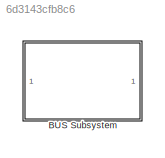
MODEL slx_6d3143cfb8c6
KIND library
CONFIG AbsTol = auto
CONFIG EnableMultiTasking = off
CONFIG FixedStep = auto
CONFIG MaxStep = auto
CONFIG MinStep = auto
CONFIG RelTol = 1e-3
CONFIG SampleTimeConstraint = Unconstrained
CONFIG Solver = VariableStepAuto
CONFIG SolverName = VariableStepAuto
CONFIG StartTime = 0.0
CONFIG StopTime = 10.0
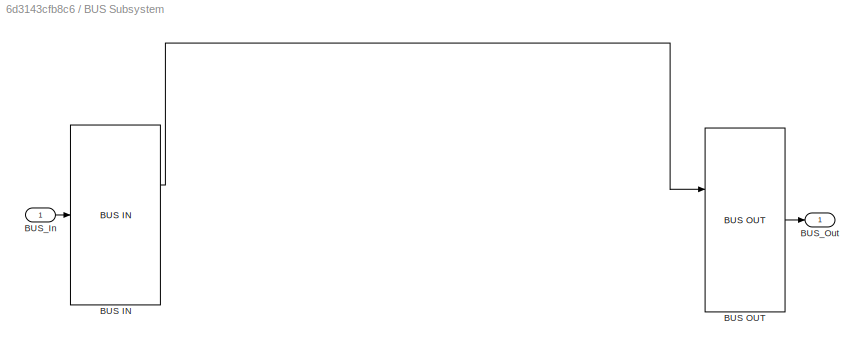
BLOCK [SubSystem] BUS Subsystem
  OpenFcn = set_param(gcb(),'LinkStatus','none')\nopen_system(gcb(),'force')
  Ports = [1, 1]
  RequestExecContextInheritance = off
  Variant = off
BLOCK [Reference] BUS Subsystem/BUS IN  REF=BUS_IN/BUS IN
  Ports = [1, 2]
  SourceBlock = BUS_IN/BUS IN
BLOCK [Reference] BUS Subsystem/BUS OUT  REF=BUS_OUT/BUS OUT
  Ports = [2, 1]
  SourceBlock = BUS_OUT/BUS OUT
BLOCK [Inport] BUS Subsystem/BUS_In
  IconDisplay = Port number
BLOCK [Outport] BUS Subsystem/BUS_Out
  IconDisplay = Port number
LINE BUS Subsystem/BUS IN:1 -> BUS Subsystem/BUS OUT:1
LINE BUS Subsystem/BUS OUT:1 -> BUS Subsystem/BUS_Out:1
LINE BUS Subsystem/BUS_In:1 -> BUS Subsystem/BUS IN:1
